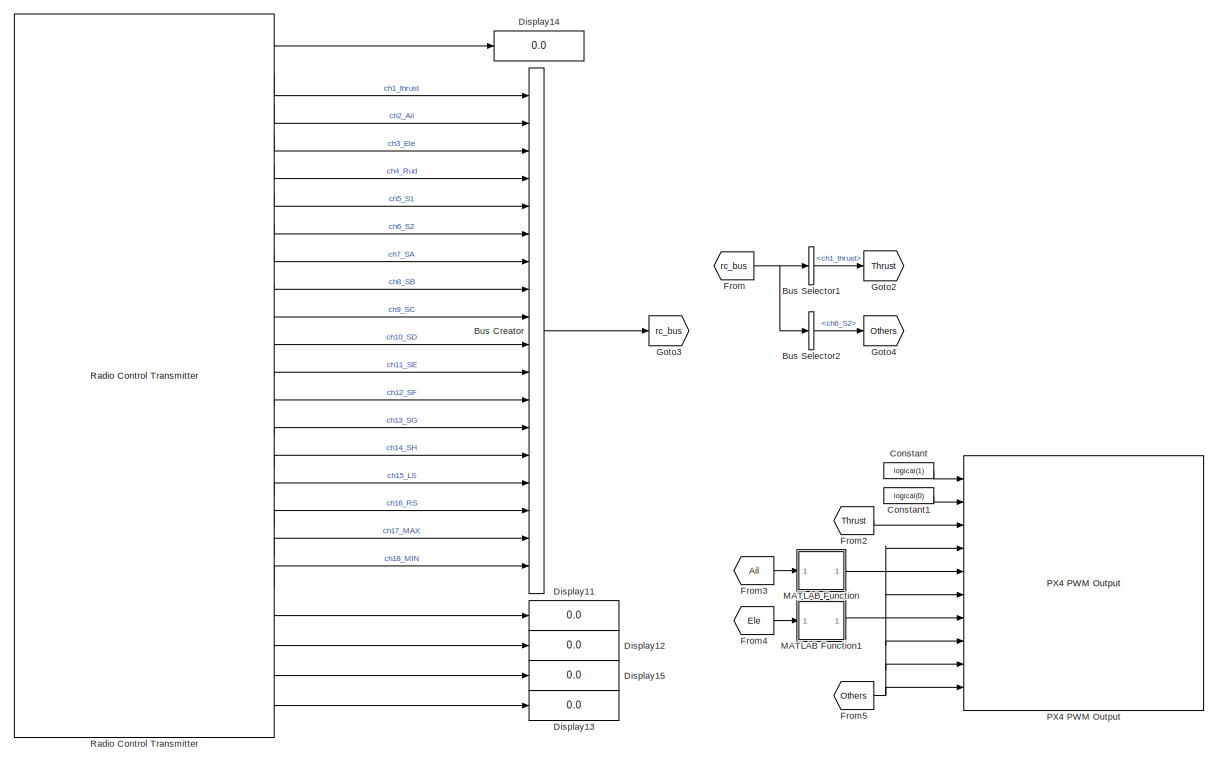
[diagram: root canvas - part 1/3, full width, top band]
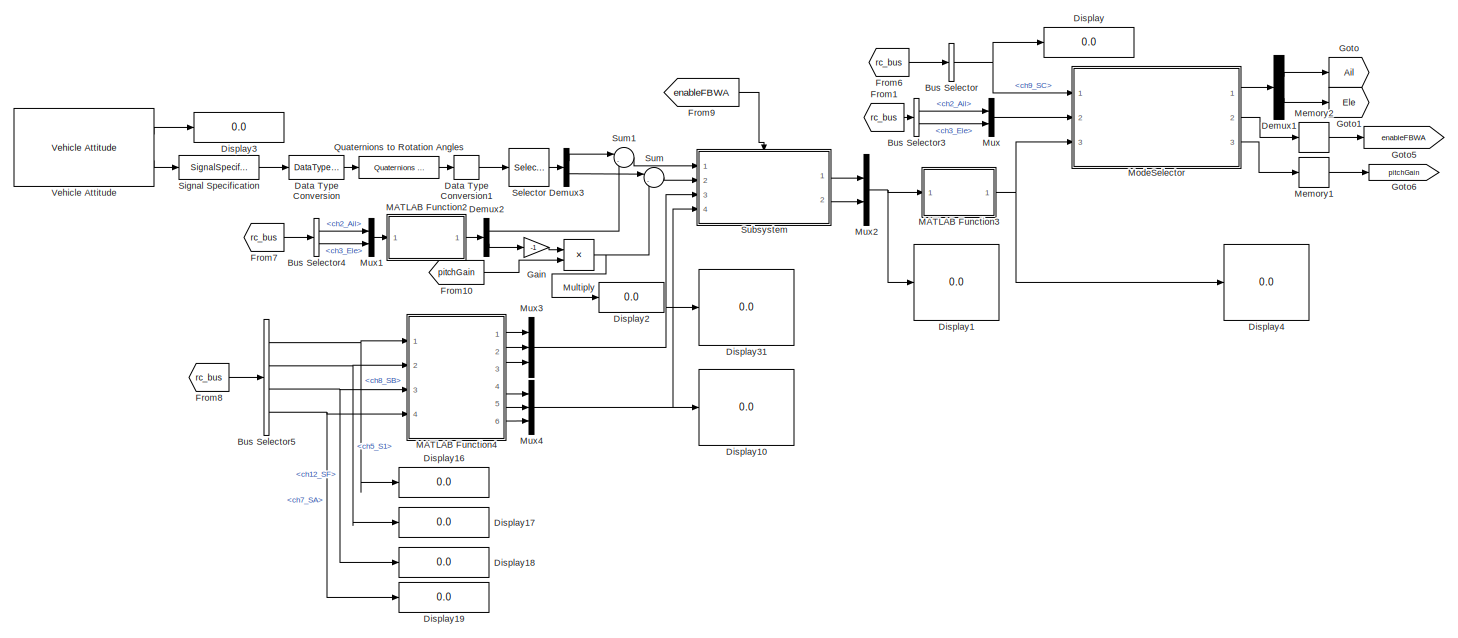
[diagram: root canvas - part 2/3, full width, middle band]
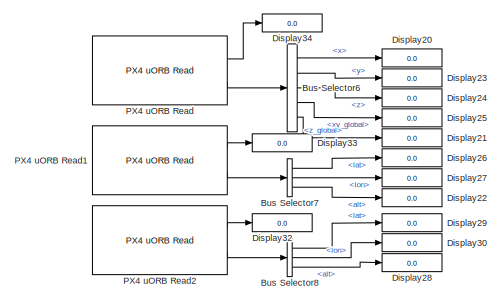
[diagram: root canvas - part 3/3, bottom right region]
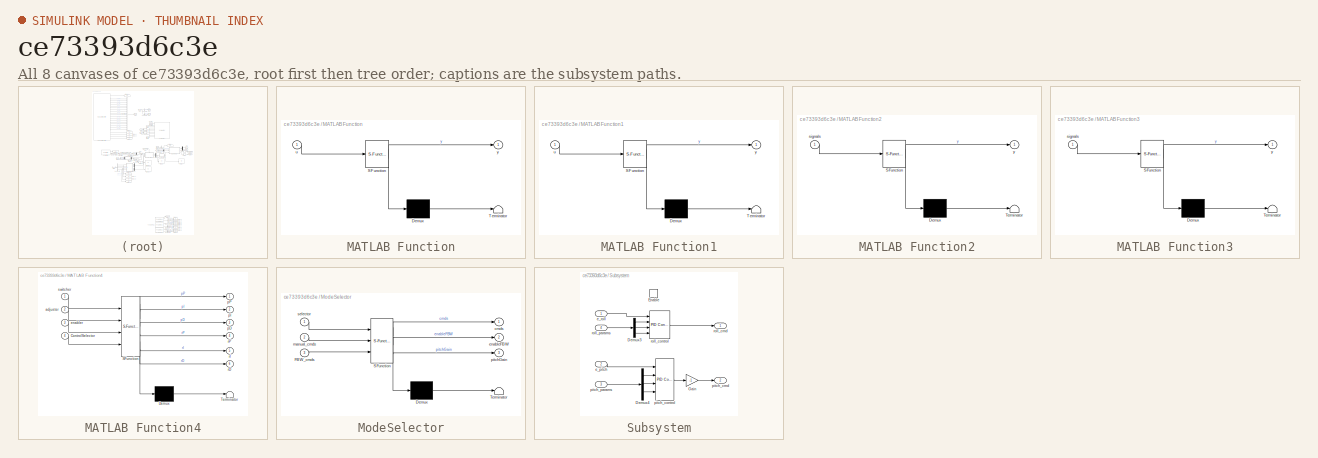
[diagram: thumbnail index - all 8 canvases of the model, root first then tree order]
MODEL slx_ce73393d6c3e
KIND model
CONFIG AbsTol = auto
CONFIG EnableMultiTasking = on
CONFIG FixedStep = auto
CONFIG MaxStep = auto
CONFIG MinStep = auto
CONFIG RelTol = 1e-3
CONFIG SampleTimeConstraint = Unconstrained
CONFIG Solver = FixedStepAuto
CONFIG SolverName = FixedStepAuto
CONFIG StartTime = 0.0
CONFIG StopTime = 10.0
BLOCK [BusCreator] Bus Creator
  DisplayOption = bar
  InheritFromInputs = on
  Inputs = 18
  Ports = [18, 1]
BLOCK [BusSelector] Bus Selector
  OutputAsBus = off
  OutputSignals = ch9_SC
  Ports = [1, 1]
BLOCK [BusSelector] Bus Selector1
  OutputAsBus = off
  OutputSignals = ch1_thrust
  Ports = [1, 1]
BLOCK [BusSelector] Bus Selector2
  OutputAsBus = off
  OutputSignals = ch6_S2
  Ports = [1, 1]
BLOCK [BusSelector] Bus Selector3
  OutputAsBus = off
  OutputSignals = ch2_Ail,ch3_Ele
  Ports = [1, 2]
BLOCK [BusSelector] Bus Selector4
  OutputAsBus = off
  OutputSignals = ch2_Ail,ch3_Ele
  Ports = [1, 2]
BLOCK [BusSelector] Bus Selector5
  OutputAsBus = off
  OutputSignals = ch8_SB,ch5_S1,ch12_SF,ch7_SA
  Ports = [1, 4]
BLOCK [BusSelector] Bus Selector6
  OutputAsBus = off
  OutputSignals = x,y,z,xy_global,z_global
  Ports = [1, 5]
BLOCK [BusSelector] Bus Selector7
  OutputAsBus = off
  OutputSignals = lat,lon,alt
  Ports = [1, 3]
BLOCK [BusSelector] Bus Selector8
  OutputAsBus = off
  OutputSignals = lat,lon,alt
  Ports = [1, 3]
BLOCK [Constant] Constant
  Value = logical(1)
BLOCK [Constant] Constant1
  Value = logical(0)
BLOCK [DataTypeConversion] Data Type Conversion
  OutDataTypeStr = double
  RndMeth = Floor
  SaturateOnIntegerOverflow = off
BLOCK [DataTypeConversion] Data Type Conversion1
  OutDataTypeStr = single
  RndMeth = Floor
  SaturateOnIntegerOverflow = off
BLOCK [Demux] Demux1
  DisplayOption = bar
  Outputs = 2
  Ports = [1, 2]
BLOCK [Demux] Demux2
  DisplayOption = bar
  Outputs = 2
  Ports = [1, 2]
BLOCK [Demux] Demux3
  DisplayOption = bar
  Outputs = 2
  Ports = [1, 2]
BLOCK [Display] Display
  Decimation = 1
  Ports = [1]
BLOCK [Display] Display1
  Decimation = 1
  Ports = [1]
BLOCK [Display] Display10
  Decimation = 1
  Ports = [1]
BLOCK [Display] Display11
  Decimation = 1
  Ports = [1]
BLOCK [Display] Display12
  Decimation = 1
  Ports = [1]
BLOCK [Display] Display13
  Decimation = 1
  Ports = [1]
BLOCK [Display] Display14
  Decimation = 1
  Ports = [1]
BLOCK [Display] Display15
  Decimation = 1
  Ports = [1]
BLOCK [Display] Display16
  Decimation = 1
  Ports = [1]
BLOCK [Display] Display17
  Decimation = 1
  Ports = [1]
BLOCK [Display] Display18
  Decimation = 1
  Ports = [1]
BLOCK [Display] Display19
  Decimation = 1
  Ports = [1]
BLOCK [Display] Display2
  Decimation = 1
  Ports = [1]
BLOCK [Display] Display20
  Decimation = 1
  Ports = [1]
BLOCK [Display] Display21
  Decimation = 1
  Ports = [1]
BLOCK [Display] Display22
  Decimation = 1
  Ports = [1]
BLOCK [Display] Display23
  Decimation = 1
  Ports = [1]
BLOCK [Display] Display24
  Decimation = 1
  Ports = [1]
BLOCK [Display] Display25
  Decimation = 1
  Ports = [1]
BLOCK [Display] Display26
  Decimation = 1
  Ports = [1]
BLOCK [Display] Display27
  Decimation = 1
  Ports = [1]
BLOCK [Display] Display28
  Decimation = 1
  Ports = [1]
BLOCK [Display] Display29
  Decimation = 1
  Ports = [1]
BLOCK [Display] Display3
  Decimation = 1
  Ports = [1]
BLOCK [Display] Display30
  Decimation = 1
  Ports = [1]
BLOCK [Display] Display31
  Decimation = 1
  Ports = [1]
BLOCK [Display] Display32
  Decimation = 1
  Ports = [1]
BLOCK [Display] Display33
  Decimation = 1
  Ports = [1]
BLOCK [Display] Display34
  Decimation = 1
  Ports = [1]
BLOCK [Display] Display4
  Decimation = 1
  Ports = [1]
BLOCK [From] From
  GotoTag = rc_bus
BLOCK [From] From1
  GotoTag = rc_bus
BLOCK [From] From10
  GotoTag = pitchGain
BLOCK [From] From2
  GotoTag = Thrust
BLOCK [From] From3
  GotoTag = Ail
BLOCK [From] From4
  GotoTag = Ele
BLOCK [From] From5
  GotoTag = Others
BLOCK [From] From6
  GotoTag = rc_bus
BLOCK [From] From7
  GotoTag = rc_bus
BLOCK [From] From8
  GotoTag = rc_bus
BLOCK [From] From9
  GotoTag = enableFBWA
BLOCK [Gain] Gain
  Gain = -1
  OutDataTypeStr = Inherit: Inherit via internal rule
  ParamDataTypeStr = Inherit: Inherit via internal rule
  SaturateOnIntegerOverflow = off
BLOCK [Goto] Goto
  GotoTag = Ail
BLOCK [Goto] Goto1
  GotoTag = Ele
BLOCK [Goto] Goto2
  GotoTag = Thrust
BLOCK [Goto] Goto3
  GotoTag = rc_bus
BLOCK [Goto] Goto4
  GotoTag = Others
BLOCK [Goto] Goto5
  GotoTag = enableFBWA
BLOCK [Goto] Goto6
  GotoTag = pitchGain
BLOCK [SubSystem] MATLAB Function
  ErrorFcn = Stateflow.Translate.translate
  PermitHierarchicalResolution = ExplicitOnly
  Ports = [1, 1]
  RequestExecContextInheritance = off
  SFBlockType = MATLAB Function
  TreatAsAtomicUnit = on
BLOCK [Demux] MATLAB Function/ Demux 
  Outputs = 1
  Ports = [1, 1]
BLOCK [S-Function] MATLAB Function/ SFunction 
  EnableBusSupport = on
  FunctionName = sf_sfun
  PortCounts = [1 2]
  Ports = [1, 2]
  SFcnIsStateOwnerBlock = off
  SFunctionDeploymentMode = off
  Tag = Stateflow S-Function Bixler 2
BLOCK [Terminator] MATLAB Function/ Terminator 
BLOCK [Inport] MATLAB Function/u
  IconDisplay = Port number
BLOCK [Outport] MATLAB Function/y
  IconDisplay = Port number
BLOCK [SubSystem] MATLAB Function1
  ErrorFcn = Stateflow.Translate.translate
  PermitHierarchicalResolution = ExplicitOnly
  Ports = [1, 1]
  RequestExecContextInheritance = off
  SFBlockType = MATLAB Function
  TreatAsAtomicUnit = on
BLOCK [Demux] MATLAB Function1/ Demux 
  Outputs = 1
  Ports = [1, 1]
BLOCK [S-Function] MATLAB Function1/ SFunction 
  EnableBusSupport = on
  FunctionName = sf_sfun
  PortCounts = [1 2]
  Ports = [1, 2]
  SFcnIsStateOwnerBlock = off
  SFunctionDeploymentMode = off
  Tag = Stateflow S-Function Bixler 1
BLOCK [Terminator] MATLAB Function1/ Terminator 
BLOCK [Inport] MATLAB Function1/u
  IconDisplay = Port number
BLOCK [Outport] MATLAB Function1/y
  IconDisplay = Port number
BLOCK [SubSystem] MATLAB Function2
  ErrorFcn = Stateflow.Translate.translate
  PermitHierarchicalResolution = ExplicitOnly
  Ports = [1, 1]
  RequestExecContextInheritance = off
  SFBlockType = MATLAB Function
  TreatAsAtomicUnit = on
BLOCK [Demux] MATLAB Function2/ Demux 
  Outputs = 1
  Ports = [1, 1]
BLOCK [S-Function] MATLAB Function2/ SFunction 
  EnableBusSupport = on
  FunctionName = sf_sfun
  PortCounts = [1 2]
  Ports = [1, 2]
  SFcnIsStateOwnerBlock = off
  SFunctionDeploymentMode = off
  Tag = Stateflow S-Function Bixler 3
BLOCK [Terminator] MATLAB Function2/ Terminator 
BLOCK [Inport] MATLAB Function2/signals
  IconDisplay = Port number
BLOCK [Outport] MATLAB Function2/y
  IconDisplay = Port number
BLOCK [SubSystem] MATLAB Function3
  ErrorFcn = Stateflow.Translate.translate
  PermitHierarchicalResolution = ExplicitOnly
  Ports = [1, 1]
  RequestExecContextInheritance = off
  SFBlockType = MATLAB Function
  TreatAsAtomicUnit = on
BLOCK [Demux] MATLAB Function3/ Demux 
  Outputs = 1
  Ports = [1, 1]
BLOCK [S-Function] MATLAB Function3/ SFunction 
  EnableBusSupport = on
  FunctionName = sf_sfun
  PortCounts = [1 2]
  Ports = [1, 2]
  SFcnIsStateOwnerBlock = off
  SFunctionDeploymentMode = off
  Tag = Stateflow S-Function Bixler 4
BLOCK [Terminator] MATLAB Function3/ Terminator 
BLOCK [Inport] MATLAB Function3/signals
  IconDisplay = Port number
BLOCK [Outport] MATLAB Function3/y
  IconDisplay = Port number
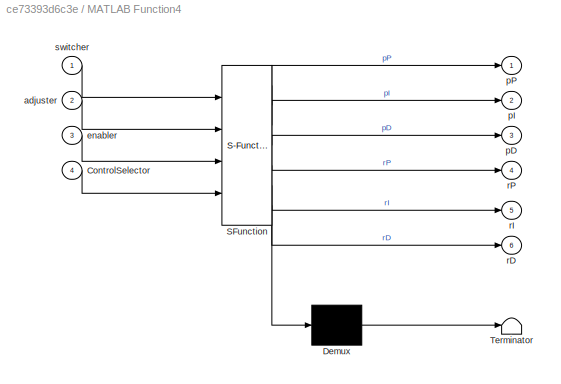
BLOCK [SubSystem] MATLAB Function4
  ErrorFcn = Stateflow.Translate.translate
  PermitHierarchicalResolution = ExplicitOnly
  Ports = [4, 6]
  RequestExecContextInheritance = off
  SFBlockType = MATLAB Function
  TreatAsAtomicUnit = on
BLOCK [Demux] MATLAB Function4/ Demux 
  Outputs = 1
  Ports = [1, 1]
BLOCK [S-Function] MATLAB Function4/ SFunction 
  EnableBusSupport = on
  FunctionName = sf_sfun
  PortCounts = [4 7]
  Ports = [4, 7]
  SFcnIsStateOwnerBlock = off
  SFunctionDeploymentMode = off
  Tag = Stateflow S-Function Bixler 5
BLOCK [Terminator] MATLAB Function4/ Terminator 
BLOCK [Inport] MATLAB Function4/ControlSelector
  IconDisplay = Port number
  Port = 4
BLOCK [Inport] MATLAB Function4/adjuster
  IconDisplay = Port number
  Port = 2
BLOCK [Inport] MATLAB Function4/enabler
  IconDisplay = Port number
  Port = 3
BLOCK [Outport] MATLAB Function4/pD
  IconDisplay = Port number
  Port = 3
BLOCK [Outport] MATLAB Function4/pI
  IconDisplay = Port number
  Port = 2
BLOCK [Outport] MATLAB Function4/pP
  IconDisplay = Port number
BLOCK [Outport] MATLAB Function4/rD
  IconDisplay = Port number
  Port = 6
BLOCK [Outport] MATLAB Function4/rI
  IconDisplay = Port number
  Port = 5
BLOCK [Outport] MATLAB Function4/rP
  IconDisplay = Port number
  Port = 4
BLOCK [Inport] MATLAB Function4/switcher
  IconDisplay = Port number
BLOCK [Memory] Memory1
BLOCK [Memory] Memory2
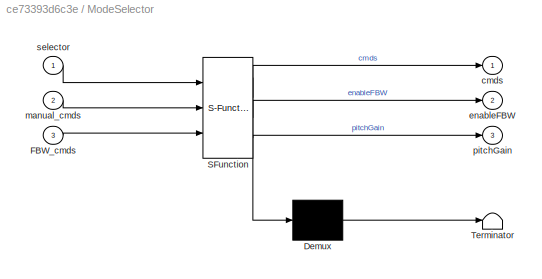
BLOCK [SubSystem] ModeSelector
  ErrorFcn = Stateflow.Translate.translate
  PermitHierarchicalResolution = ExplicitOnly
  Ports = [3, 3]
  RequestExecContextInheritance = off
  SFBlockType = MATLAB Function
  TreatAsAtomicUnit = on
BLOCK [Demux] ModeSelector/ Demux 
  Outputs = 1
  Ports = [1, 1]
BLOCK [S-Function] ModeSelector/ SFunction 
  EnableBusSupport = on
  FunctionName = sf_sfun
  PortCounts = [3 4]
  Ports = [3, 4]
  SFcnIsStateOwnerBlock = off
  SFunctionDeploymentMode = off
  Tag = Stateflow S-Function Bixler 6
BLOCK [Terminator] ModeSelector/ Terminator 
BLOCK [Inport] ModeSelector/FBW_cmds
  IconDisplay = Port number
  Port = 3
BLOCK [Outport] ModeSelector/cmds
  IconDisplay = Port number
BLOCK [Outport] ModeSelector/enableFBW
  IconDisplay = Port number
  Port = 2
BLOCK [Inport] ModeSelector/manual_cmds
  IconDisplay = Port number
  Port = 2
BLOCK [Outport] ModeSelector/pitchGain
  IconDisplay = Port number
  Port = 3
BLOCK [Inport] ModeSelector/selector
  IconDisplay = Port number
BLOCK [Product] Multiply
  InputSameDT = off
  OutDataTypeStr = Inherit: Inherit via internal rule
  Ports = [2, 1]
  RndMeth = Floor
  SaturateOnIntegerOverflow = off
BLOCK [Mux] Mux
  DisplayOption = bar
  Inputs = 2
  Ports = [2, 1]
BLOCK [Mux] Mux1
  DisplayOption = bar
  Inputs = 2
  Ports = [2, 1]
BLOCK [Mux] Mux2
  DisplayOption = bar
  Inputs = 2
  Ports = [2, 1]
BLOCK [Mux] Mux3
  DisplayOption = bar
  Inputs = 3
  Ports = [3, 1]
BLOCK [Mux] Mux4
  DisplayOption = bar
  Inputs = 3
  Ports = [3, 1]
BLOCK [Reference] PX4 PWM Output  REF=px4lib/PX4 PWM Output
  Ports = [10]
  SourceBlock = px4lib/PX4 PWM Output
  SourceProductName = Embedded Coder Support Package for PX4 Autopilots
  SourceType = PX4 PWM Output
BLOCK [Reference] PX4 uORB Read  REF=px4uORBlib/PX4 uORB Read
  Ports = [0, 2]
  SourceBlock = px4uORBlib/PX4 uORB Read
  SourceProductName = Embedded Coder Support Package for PX4 Autopilots
  SourceType = PX4 uORB Read
BLOCK [Reference] PX4 uORB Read1  REF=px4uORBlib/PX4 uORB Read
  Ports = [0, 2]
  SourceBlock = px4uORBlib/PX4 uORB Read
  SourceProductName = Embedded Coder Support Package for PX4 Autopilots
  SourceType = PX4 uORB Read
BLOCK [Reference] PX4 uORB Read2  REF=px4uORBlib/PX4 uORB Read
  Ports = [0, 2]
  SourceBlock = px4uORBlib/PX4 uORB Read
  SourceProductName = Embedded Coder Support Package for PX4 Autopilots
  SourceType = PX4 uORB Read
BLOCK [Reference] Quaternions to Rotation Angles  REF=sharedtransform/Quaternions to Rotation Angles
  AttributesFormatString = Rotation Order: %<rotationOrder>
  Ports = [1, 1]
  SourceBlock = sharedtransform/Quaternions to Rotation Angles
  SourceProductBaseCode = AE
  SourceProductName = Aerospace Blockset
  SourceType = Quat2Ang
BLOCK [Reference] Radio Control Transmitter  REF=px4Sensorslib/Radio Control Transmitter
  Ports = [0, 23]
  SourceBlock = px4Sensorslib/Radio Control Transmitter
  SourceProductName = Embedded Coder Support Package for PX4 Autopilots
  SourceType = PX4 Radio Control Transmitter
BLOCK [Selector] Selector
  IndexOptions = Index vector (dialog)
  Indices = [3 2]
  InputPortWidth = 3
  OutputSizes = 1
  Ports = [1, 1]
BLOCK [SignalSpecification] Signal Specification
  OutDataTypeStr = single
BLOCK [SubSystem] Subsystem
  Ports = [4, 2, 1]
  RequestExecContextInheritance = off
BLOCK [Demux] Subsystem/Demux3
  DisplayOption = bar
  Outputs = 3
  Ports = [1, 3]
BLOCK [Demux] Subsystem/Demux4
  DisplayOption = bar
  Outputs = 3
  Ports = [1, 3]
BLOCK [EnablePort] Subsystem/Enable
  Ports = []
BLOCK [Gain] Subsystem/Gain
  Gain = -1
  OutDataTypeStr = Inherit: Inherit via internal rule
  ParamDataTypeStr = Inherit: Inherit via internal rule
  SaturateOnIntegerOverflow = off
BLOCK [Inport] Subsystem/e_pitch
  IconDisplay = Port number
  Port = 2
BLOCK [Inport] Subsystem/e_roll
  IconDisplay = Port number
BLOCK [Outport] Subsystem/pitch_cmd
  IconDisplay = Port number
  Port = 2
BLOCK [Reference] Subsystem/pitch_control  REF=simulink/Continuous/PID Controller
  Ports = [4, 1]
  SourceBlock = simulink/Continuous/PID Controller
  SourceProductBaseCode = SL
  SourceProductName = Simulink
  SourceType = PID 1dof
BLOCK [Inport] Subsystem/pitch_params
  IconDisplay = Port number
  Port = 3
BLOCK [Outport] Subsystem/roll_cmd
  IconDisplay = Port number
BLOCK [Reference] Subsystem/roll_control  REF=simulink/Continuous/PID Controller
  Ports = [4, 1]
  SourceBlock = simulink/Continuous/PID Controller
  SourceProductBaseCode = SL
  SourceProductName = Simulink
  SourceType = PID 1dof
BLOCK [Inport] Subsystem/roll_params
  IconDisplay = Port number
  Port = 4
BLOCK [Sum] Sum
  IconShape = round
  InputSameDT = off
  Inputs = |-+
  OutDataTypeStr = Inherit: Inherit via internal rule
  Ports = [2, 1]
  SaturateOnIntegerOverflow = off
BLOCK [Sum] Sum1
  IconShape = round
  InputSameDT = off
  Inputs = |-+
  OutDataTypeStr = Inherit: Inherit via internal rule
  Ports = [2, 1]
  SaturateOnIntegerOverflow = off
BLOCK [Reference] Vehicle Attitude  REF=px4Sensorslib/Vehicle Attitude
  Ports = [0, 2]
  SourceBlock = px4Sensorslib/Vehicle Attitude
  SourceProductName = Embedded Coder Support Package for PX4 Autopilots
  SourceType = PX4 Vehicle Attitude
LINE Bus Creator:1 -> Goto3:1
LINE Bus Selector1:1 -> Goto2:1
LINE Bus Selector2:1 -> Goto4:1
LINE Bus Selector3:1 -> Mux:1
LINE Bus Selector3:2 -> Mux:2
LINE Bus Selector4:1 -> Mux1:1
LINE Bus Selector4:2 -> Mux1:2
NET Bus Selector5:1 -> Display16:1, MATLAB Function4:1
NET Bus Selector5:2 -> Display17:1, MATLAB Function4:2
NET Bus Selector5:3 -> Display18:1, MATLAB Function4:3
NET Bus Selector5:4 -> Display19:1, MATLAB Function4:4
LINE Bus Selector6:1 -> Display20:1
LINE Bus Selector6:2 -> Display23:1
LINE Bus Selector6:3 -> Display24:1
LINE Bus Selector6:4 -> Display25:1
LINE Bus Selector6:5 -> Display21:1
LINE Bus Selector7:1 -> Display26:1
LINE Bus Selector7:2 -> Display27:1
LINE Bus Selector7:3 -> Display22:1
LINE Bus Selector8:1 -> Display29:1
LINE Bus Selector8:2 -> Display30:1
LINE Bus Selector8:3 -> Display28:1
NET Bus Selector:1 -> Display:1, ModeSelector:1
LINE Constant1:1 -> PX4 PWM Output:2
LINE Constant:1 -> PX4 PWM Output:1
LINE Data Type Conversion1:1 -> Selector:1
LINE Data Type Conversion:1 -> Quaternions to Rotation Angles:1
LINE Demux1:1 -> Goto:1
LINE Demux1:2 -> Goto1:1
LINE Demux2:1 -> Sum1:2
LINE Demux2:2 -> Gain:1
LINE Demux3:1 -> Sum1:1
LINE Demux3:2 -> Sum:1
LINE From10:1 -> Multiply:2
LINE From1:1 -> Bus Selector3:1
LINE From2:1 -> PX4 PWM Output:3
LINE From3:1 -> MATLAB Function:1
LINE From4:1 -> MATLAB Function1:1
NET From5:1 -> PX4 PWM Output:10, PX4 PWM Output:4, PX4 PWM Output:6, PX4 PWM Output:8, PX4 PWM Output:9
LINE From6:1 -> Bus Selector:1
LINE From7:1 -> Bus Selector4:1
LINE From8:1 -> Bus Selector5:1
LINE From9:1 -> Subsystem:enable
NET From:1 -> Bus Selector1:1, Bus Selector2:1
LINE Gain:1 -> Multiply:1
LINE MATLAB Function1:1 -> PX4 PWM Output:7
LINE MATLAB Function2:1 -> Demux2:1
NET MATLAB Function3:1 -> Display4:1, ModeSelector:3
LINE MATLAB Function4:1 -> Mux3:1
LINE MATLAB Function4:2 -> Mux3:2
LINE MATLAB Function4:3 -> Mux3:3
LINE MATLAB Function4:4 -> Mux4:1
LINE MATLAB Function4:5 -> Mux4:2
LINE MATLAB Function4:6 -> Mux4:3
LINE MATLAB Function:1 -> PX4 PWM Output:5
LINE Memory1:1 -> Goto6:1
LINE Memory2:1 -> Goto5:1
LINE ModeSelector:1 -> Demux1:1
LINE ModeSelector:2 -> Memory2:1
LINE ModeSelector:3 -> Memory1:1
NET Multiply:1 -> Display2:1, Sum:2
LINE Mux1:1 -> MATLAB Function2:1
NET Mux2:1 -> Display1:1, MATLAB Function3:1
NET Mux3:1 -> Display31:1, Subsystem:3
NET Mux4:1 -> Display10:1, Subsystem:4
LINE Mux:1 -> ModeSelector:2
LINE PX4 uORB Read1:1 -> Display33:1
LINE PX4 uORB Read1:2 -> Bus Selector7:1
LINE PX4 uORB Read2:1 -> Display32:1
LINE PX4 uORB Read2:2 -> Bus Selector8:1
LINE PX4 uORB Read:1 -> Display34:1
LINE PX4 uORB Read:2 -> Bus Selector6:1
LINE Quaternions to Rotation Angles:1 -> Data Type Conversion1:1
LINE Radio Control Transmitter:1 -> Display14:1
LINE Radio Control Transmitter:10 -> Bus Creator:9
LINE Radio Control Transmitter:11 -> Bus Creator:10
LINE Radio Control Transmitter:12 -> Bus Creator:11
LINE Radio Control Transmitter:13 -> Bus Creator:12
LINE Radio Control Transmitter:14 -> Bus Creator:13
LINE Radio Control Transmitter:15 -> Bus Creator:14
LINE Radio Control Transmitter:16 -> Bus Creator:15
LINE Radio Control Transmitter:17 -> Bus Creator:16
LINE Radio Control Transmitter:18 -> Bus Creator:17
LINE Radio Control Transmitter:19 -> Bus Creator:18
LINE Radio Control Transmitter:2 -> Bus Creator:1
LINE Radio Control Transmitter:20 -> Display11:1
LINE Radio Control Transmitter:21 -> Display12:1
LINE Radio Control Transmitter:22 -> Display15:1
LINE Radio Control Transmitter:23 -> Display13:1
LINE Radio Control Transmitter:3 -> Bus Creator:2
LINE Radio Control Transmitter:4 -> Bus Creator:3
LINE Radio Control Transmitter:5 -> Bus Creator:4
LINE Radio Control Transmitter:6 -> Bus Creator:5
LINE Radio Control Transmitter:7 -> Bus Creator:6
LINE Radio Control Transmitter:8 -> Bus Creator:7
LINE Radio Control Transmitter:9 -> Bus Creator:8
LINE Selector:1 -> Demux3:1
LINE Signal Specification:1 -> Data Type Conversion:1
LINE Subsystem/Demux3:1 -> Subsystem/roll_control:2
LINE Subsystem/Demux3:2 -> Subsystem/roll_control:3
LINE Subsystem/Demux3:3 -> Subsystem/roll_control:4
LINE Subsystem/Demux4:1 -> Subsystem/pitch_control:2
LINE Subsystem/Demux4:2 -> Subsystem/pitch_control:3
LINE Subsystem/Demux4:3 -> Subsystem/pitch_control:4
LINE Subsystem/Gain:1 -> Subsystem/pitch_cmd:1
LINE Subsystem/e_pitch:1 -> Subsystem/pitch_control:1
LINE Subsystem/e_roll:1 -> Subsystem/roll_control:1
LINE Subsystem/pitch_control:1 -> Subsystem/Gain:1
LINE Subsystem/pitch_params:1 -> Subsystem/Demux4:1
LINE Subsystem/roll_control:1 -> Subsystem/roll_cmd:1
LINE Subsystem/roll_params:1 -> Subsystem/Demux3:1
LINE Subsystem:1 -> Mux2:1
LINE Subsystem:2 -> Mux2:2
LINE Sum1:1 -> Subsystem:1
LINE Sum:1 -> Subsystem:2
LINE Vehicle Attitude:1 -> Display3:1
LINE Vehicle Attitude:2 -> Signal Specification:1
note: NET lines group one-source signal fan-out (src -> all destinations, sorted); 1:1 wires keep LINE
CHART MATLAB Function1 states=1 transitions=1
  STATE_LABEL 'eML_blk_kernel()'
  STATE_LABEL 'SCRIPT:\nfunction y = invertpwm(u)\n\ny = uint16(1500-(single(u)-1500));\n'
CHART MATLAB Function states=1 transitions=1
  STATE_LABEL 'eML_blk_kernel()'
  STATE_LABEL 'SCRIPT:\nfunction y = invertpwm(u)\n\ny = uint16(1500-(single(u)-1500));\n'
CHART MATLAB Function2 states=1 transitions=1
  STATE_LABEL 'eML_blk_kernel()'
  STATE_LABEL 'SCRIPT:\nfunction y = pwm2signal(signals)\n\ny = single(signals);\n% Shift to center\ny = y-1500;\n% Range is ~1000-2000, ie +-500, but in is +-1\ny = y./500;\n'
CHART MATLAB Function3 states=1 transitions=1
  STATE_LABEL 'eML_blk_kernel()'
  STATE_LABEL 'SCRIPT:\nfunction y = signal2pwm(signals)\n\ny = zeros(size(signals)); % y is hard set to uint16\n\n\n% Range is ~1000-2000, ie +-500, but in is +-1\nsignals = signals.*500;\n% Shift to center PWM\nsignals = signals+1500;\ny = uint16(signals);'
CHART MATLAB Function4 states=1 transitions=1
  STATE_LABEL 'eML_blk_kernel()'
  STATE_LABEL 'SCRIPT:\nfunction [pP,pI,pD,rP,rI,rD] = fcn(switcher, adjuster, enabler, ControlSelector)\n\npersistent pkP pkI pkD rkP rkI rkD;\nif isempty(pkP)\n    pkP = single(1);\nend\nif isempty(pkI)\n    pkI = single(0.4);\nend\nif isempty(pkD)\n    pkD = single(0.025);\nend\nif isempty(rkP)\n    rkP = single(1);\nend\nif isempty(rkI)\n    rkI = single(0.4);\nend\nif isempty(rkD)\n    rkD = single(0.05);\nend\n\nif enabler>1500\n...<+764ch>'
CHART ModeSelector states=1 transitions=1
  STATE_LABEL 'eML_blk_kernel()'
  STATE_LABEL 'SCRIPT:\nfunction [cmds,enableFBW,pitchGain] = fcn(selector, manual_cmds, FBW_cmds)\n\npitchGain = 1;\nif selector>1600 % Auto mode, stick down on remote\n    cmds = FBW_cmds;\n    enableFBW = true;\n    pitchGain = 1;\nelseif selector>1400% Midpoint, as I flew at MUST first time\n    cmds = FBW_cmds;\n    enableFBW = true;\n    pitchGain = 1.2;\nelse\n    cmds = manual_cmds; % As midpoint, but less pitch sens...<+33ch>'
